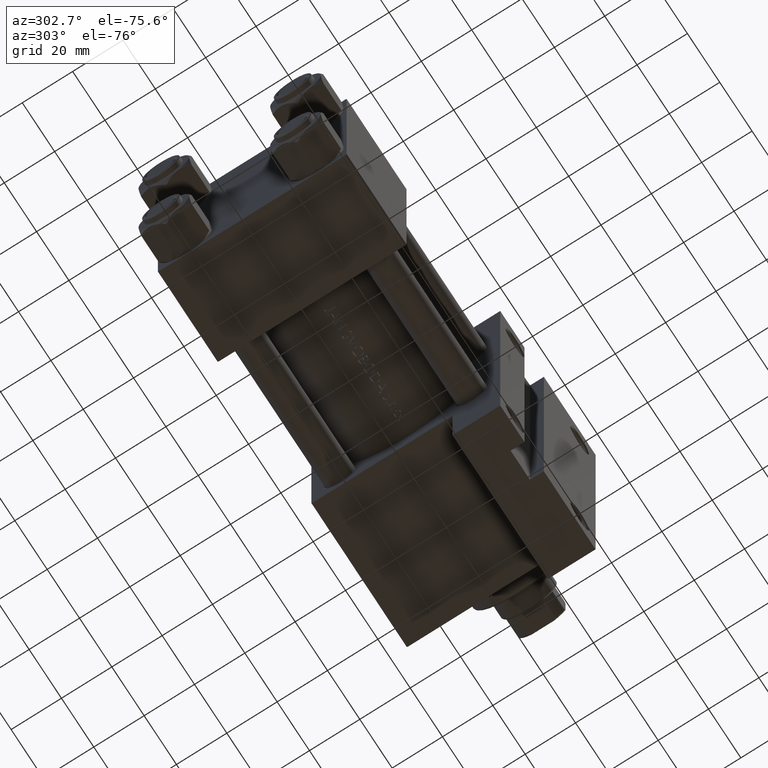
[diagram: clean part render]
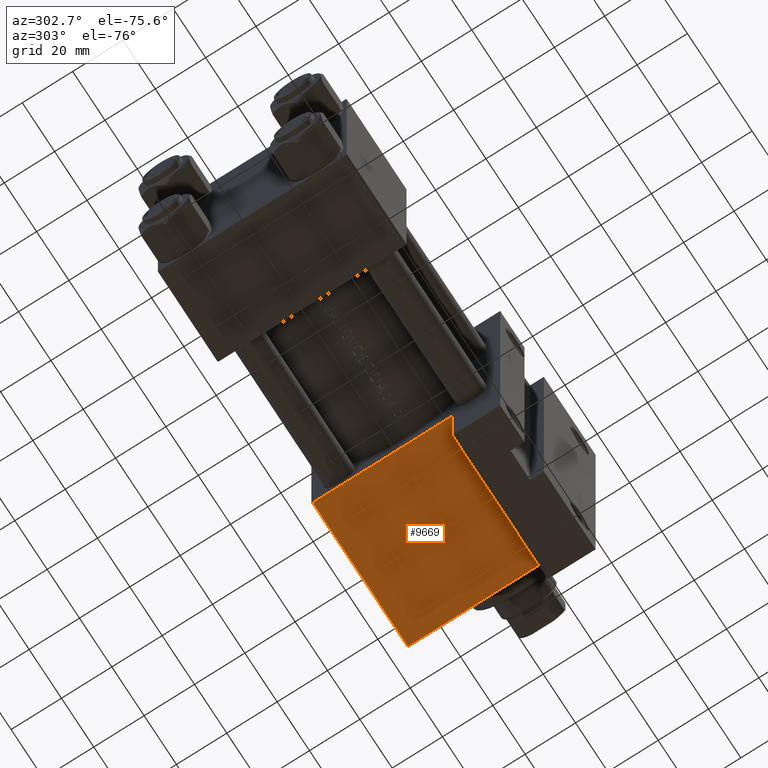
[diagram: same view with one face highlighted and labeled with its STEP entity id]
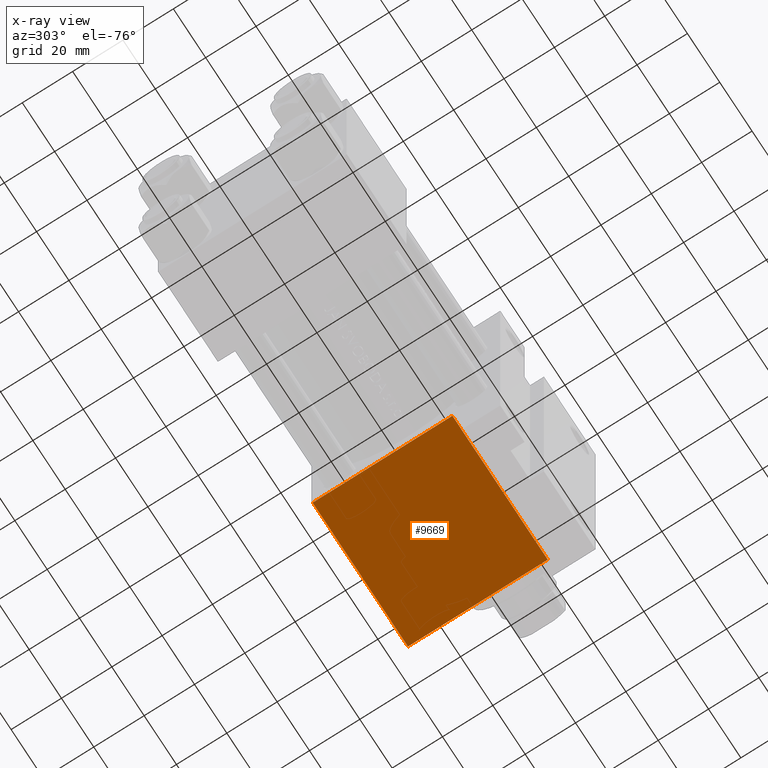
[diagram: x-ray of the same camera — body ghosted, the highlighted face saturated]
A machine part, auxiliary view. The second image highlights one B-rep face of the part: STEP entity #9669.
The next image is the same camera in x-ray: the body ghosted, the highlighted face saturated — about 0% of this face is hidden behind the body in this view.
In plain terms, the highlighted planar face has unit normal (0, 0, -1).
Its self-contained STEP definition (entity closure, byte-faithful):
#2566 = LINE ( 'NONE', #17286, #40756 ) ;
#3709 = CARTESIAN_POINT ( 'NONE',  ( 95.00000000000000000, 37.50000000000000000, 36.99999999999999289 ) ) ;
#4559 = DIRECTION ( 'NONE',  ( -0.000000000000000000, 1.000000000000000000, 0.000000000000000000 ) ) ;
#7797 = ORIENTED_EDGE ( 'NONE', *, *, #37170, .F. ) ;
#9669 = ADVANCED_FACE ( 'NONE', ( #33978 ), #37596, .T. ) ;
#15041 = VERTEX_POINT ( 'NONE', #32488 ) ;
#15093 = ORIENTED_EDGE ( 'NONE', *, *, #21541, .T. ) ;
#16555 = ORIENTED_EDGE ( 'NONE', *, *, #25207, .T. ) ;
#17286 = CARTESIAN_POINT ( 'NONE',  ( 154.0000000000000000, 37.50000000000000000, 37.49999999999999289 ) ) ;
#17586 = CARTESIAN_POINT ( 'NONE',  ( 154.0000000000000000, 37.50000000000000000, 36.99999999999999289 ) ) ;
#18243 = CARTESIAN_POINT ( 'NONE',  ( 95.00000000000000000, 37.50000000000000000, -18.50000000000000355 ) ) ;
#18477 = EDGE_CURVE ( 'NONE', #15041, #40343, #2566, .T. ) ;
#19263 = DIRECTION ( 'NONE',  ( 0.000000000000000000, -0.000000000000000000, 1.000000000000000000 ) ) ;
#19893 = ORIENTED_EDGE ( 'NONE', *, *, #18477, .T. ) ;
#20058 = VECTOR ( 'NONE', #20950, 1000.000000000000000 ) ;
#20950 = DIRECTION ( 'NONE',  ( 1.000000000000000000, 0.000000000000000000, 0.000000000000000000 ) ) ;
#21541 = EDGE_CURVE ( 'NONE', #26976, #15041, #40238, .T. ) ;
#22588 = DIRECTION ( 'NONE',  ( -1.000000000000000000, -1.176083712526649442E-16, -0.000000000000000000 ) ) ;
#24181 = AXIS2_PLACEMENT_3D ( 'NONE', #30625, #4559, #19263 ) ;
#25207 = EDGE_CURVE ( 'NONE', #40343, #29092, #30081, .T. ) ;
#25580 = VECTOR ( 'NONE', #22588, 1000.000000000000000 ) ;
#26685 = EDGE_LOOP ( 'NONE', ( #7797, #15093, #19893, #16555 ) ) ;
#26976 = VERTEX_POINT ( 'NONE', #3709 ) ;
#28680 = DIRECTION ( 'NONE',  ( 0.000000000000000000, 0.000000000000000000, -1.000000000000000000 ) ) ;
#28894 = CARTESIAN_POINT ( 'NONE',  ( 153.9999999999999716, 37.50000000000000711, -18.50000000000000000 ) ) ;
#29092 = VERTEX_POINT ( 'NONE', #18243 ) ;
#30081 = LINE ( 'NONE', #36572, #25580 ) ;
#30625 = CARTESIAN_POINT ( 'NONE',  ( 154.0000000000000000, 37.50000000000000000, 37.49999999999999289 ) ) ;
#31229 = VECTOR ( 'NONE', #28680, 1000.000000000000000 ) ;
#32482 = DIRECTION ( 'NONE',  ( 0.000000000000000000, 0.000000000000000000, -1.000000000000000000 ) ) ;
#32488 = CARTESIAN_POINT ( 'NONE',  ( 154.0000000000000000, 37.50000000000000000, 36.99999999999999289 ) ) ;
#33978 = FACE_OUTER_BOUND ( 'NONE', #26685, .T. ) ;
#36572 = CARTESIAN_POINT ( 'NONE',  ( 95.00000000000000000, 37.50000000000000000, -18.50000000000000000 ) ) ;
#37170 = EDGE_CURVE ( 'NONE', #26976, #29092, #47484, .T. ) ;
#37596 = PLANE ( 'NONE',  #24181 ) ;
#40238 = LINE ( 'NONE', #17586, #20058 ) ;
#40343 = VERTEX_POINT ( 'NONE', #28894 ) ;
#40756 = VECTOR ( 'NONE', #32482, 1000.000000000000000 ) ;
#47235 = CARTESIAN_POINT ( 'NONE',  ( 95.00000000000000000, 37.50000000000000000, 37.49999999999999289 ) ) ;
#47484 = LINE ( 'NONE', #47235, #31229 ) ;